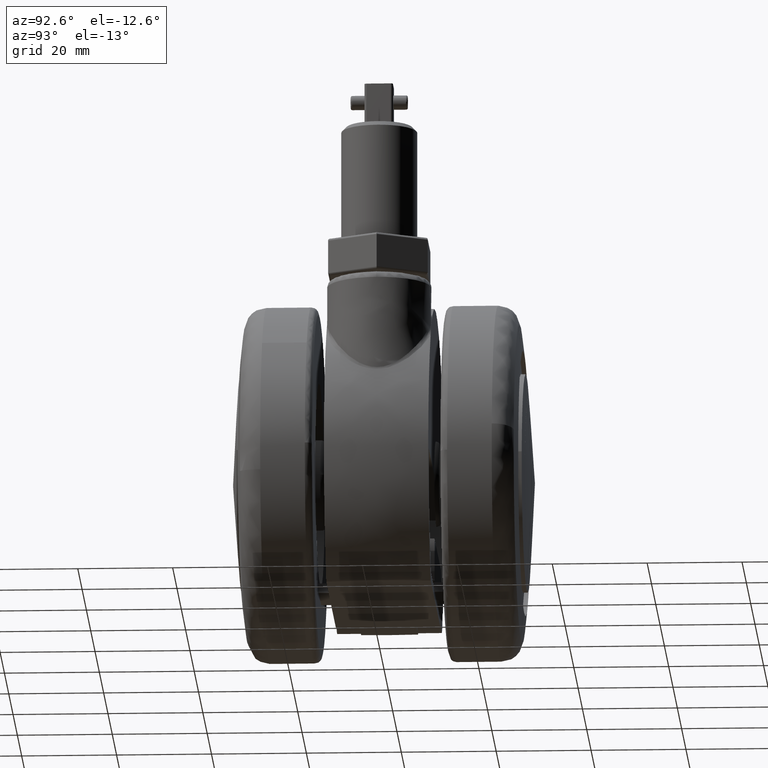
[diagram: clean part render]
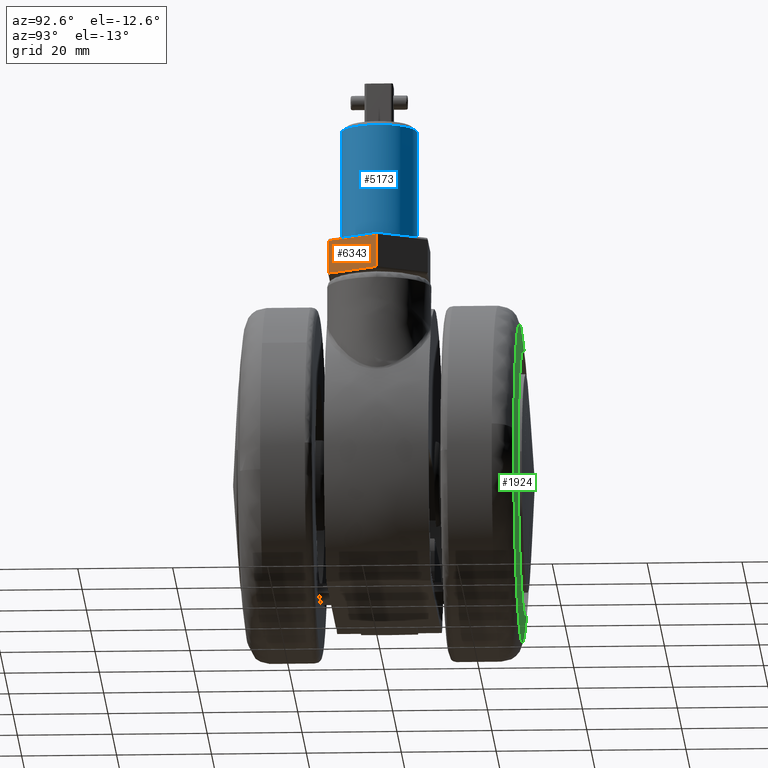
[diagram: same view with three faces highlighted in distinct colors, each labeled with its STEP entity id]
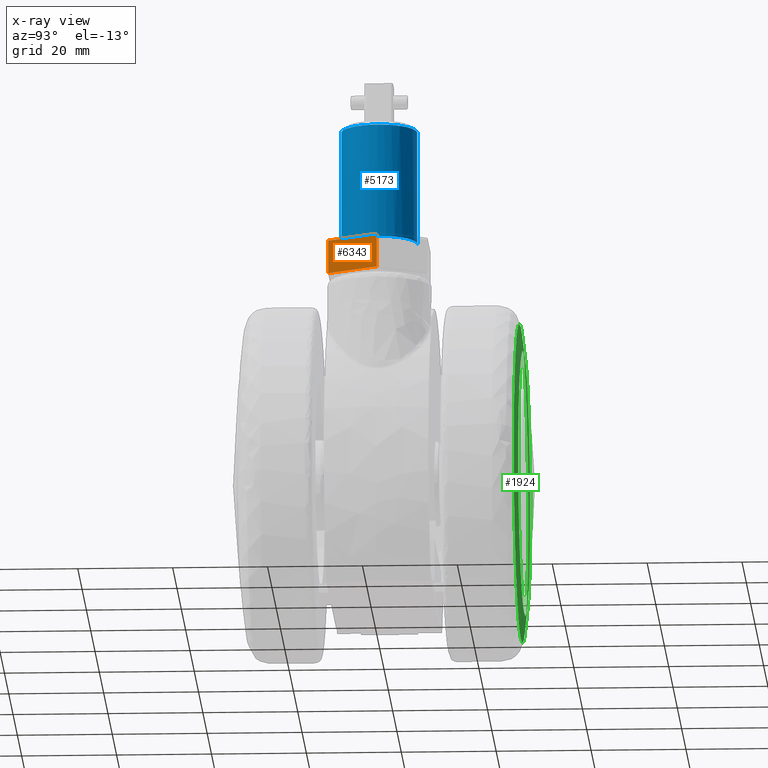
[diagram: x-ray of the same camera — body ghosted, the three highlighted faces saturated]
A machine part, auxiliary view with three faces highlighted in distinct colors.
The next image is the same camera in x-ray (body ghosted, the three faces saturated) — at least one of them is partly hidden behind the body in this view.
Their STEP definitions:

[orange] entity #6343 — the highlighted face is a freeform B-spline surface patch.
#5535=CARTESIAN_POINT('',(34.124355652982203,0.0,39.500000000000000));
#5536=VERTEX_POINT('',#5535);
#5582=CARTESIAN_POINT('',(28.062177826491101,-10.500000000000000,39.500000000000000));
#5583=VERTEX_POINT('',#5582);
#5626=CARTESIAN_POINT('',(28.062177826491101,-10.500000000000000,39.500000000000000));
#5627=CARTESIAN_POINT('',(34.124355652982203,0.0,39.500000000000000));
#5628=QUASI_UNIFORM_CURVE('',1,(#5626,#5627),.UNSPECIFIED.,.F.,.U.);
#5629=EDGE_CURVE('',#5583,#5536,#5628,.T.);
#5678=CARTESIAN_POINT('',(34.124355652982203,0.0,46.500000000000000));
#5679=VERTEX_POINT('',#5678);
#5717=CARTESIAN_POINT('',(28.062177826491101,-10.500000000000000,46.500000000000000));
#5718=VERTEX_POINT('',#5717);
#5732=CARTESIAN_POINT('',(34.124355652982203,0.0,46.500000000000000));
#5733=CARTESIAN_POINT('',(28.062177826491101,-10.500000000000000,46.500000000000000));
#5734=QUASI_UNIFORM_CURVE('',1,(#5732,#5733),.UNSPECIFIED.,.F.,.U.);
#5735=EDGE_CURVE('',#5679,#5718,#5734,.T.);
#6319=CARTESIAN_POINT('',(28.062177826491101,-10.500000000000000,46.500000000000000));
#6320=CARTESIAN_POINT('',(28.062177826491101,-10.500000000000000,39.500000000000000));
#6321=QUASI_UNIFORM_CURVE('',1,(#6319,#6320),.UNSPECIFIED.,.F.,.U.);
#6322=EDGE_CURVE('',#5718,#5583,#6321,.T.);
#6328=CARTESIAN_POINT('',(27.759372020558541,-11.024475040702090,39.150350013567348));
#6329=CARTESIAN_POINT('',(34.427161133714222,0.524474477438184,39.150350013567348));
#6330=CARTESIAN_POINT('',(27.759372020558541,-11.024475040702090,46.849650174187282));
#6331=CARTESIAN_POINT('',(34.427161133714222,0.524474477438184,46.849650174187282));
#6332=B_SPLINE_SURFACE_WITH_KNOTS('',1,1,((#6328,#6330),(#6329,#6331)),.UNSPECIFIED.,.F.,.F.,.U.,(2,2),(2,2),(0.0,13.335578226311370),(0.0,7.699300160619926),.UNSPECIFIED.);
#6333=ORIENTED_EDGE('',*,*,#6322,.T.);
#6334=ORIENTED_EDGE('',*,*,#5629,.T.);
#6335=CARTESIAN_POINT('',(34.124355652982203,0.0,46.500000000000000));
#6336=CARTESIAN_POINT('',(34.124355652982203,0.0,39.500000000000000));
#6337=QUASI_UNIFORM_CURVE('',1,(#6335,#6336),.UNSPECIFIED.,.F.,.U.);
#6338=EDGE_CURVE('',#5679,#5536,#6337,.T.);
#6339=ORIENTED_EDGE('',*,*,#6338,.F.);
#6340=ORIENTED_EDGE('',*,*,#5735,.T.);
#6341=EDGE_LOOP('',(#6333,#6334,#6339,#6340));
#6342=FACE_OUTER_BOUND('',#6341,.T.);
#6343=ADVANCED_FACE('',(#6342),#6332,.T.);

[blue] entity #5173 — the highlighted face is a freeform B-spline surface patch.
#4440=CARTESIAN_POINT('',(25.233723456026681,-7.317310476542374,70.999999999989114));
#4441=VERTEX_POINT('',#4440);
#4442=CARTESIAN_POINT('',(21.006975983200199,-7.938129710584148,71.0));
#4443=VERTEX_POINT('',#4442);
#4444=CARTESIAN_POINT('',(25.233723456026674,-7.317310476542374,70.999999999989114));
#4445=CARTESIAN_POINT('',(23.688924938151285,-8.000000000000002,71.0));
#4446=CARTESIAN_POINT('',(22.0,-8.0,71.0));
#4447=CARTESIAN_POINT('',(21.501560579568991,-8.000000000000002,71.0));
#4448=CARTESIAN_POINT('',(21.006975983200203,-7.938129710584148,71.0));
#4456=(BOUNDED_CURVE()B_SPLINE_CURVE(2,(#4444,#4445,#4446,#4447,#4448),.UNSPECIFIED.,.F.,.U.)B_SPLINE_CURVE_WITH_KNOTS((3,2,3),(0.181361578454842,0.250000000000000,0.271473928977549),.UNSPECIFIED.)CURVE()GEOMETRIC_REPRESENTATION_ITEM()RATIONAL_B_SPLINE_CURVE((0.883326595746506,0.919585087117457,1.0,0.974841727284777,0.954005430261430))REPRESENTATION_ITEM(''));
#4457=EDGE_CURVE('',#4441,#4443,#4456,.T.);
#4500=CARTESIAN_POINT('',(22.069812284123142,7.999695384512059,71.000000000000114));
#4501=VERTEX_POINT('',#4500);
#4558=CARTESIAN_POINT('',(30.0,0.0,71.0));
#4559=VERTEX_POINT('',#4558);
#4560=CARTESIAN_POINT('',(30.0,0.0,71.0));
#4561=CARTESIAN_POINT('',(29.999999999999996,-5.210960020547256,71.0));
#4562=CARTESIAN_POINT('',(25.233723456026681,-7.317310476542374,70.999999999989129));
#4570=(BOUNDED_CURVE()B_SPLINE_CURVE(2,(#4560,#4561,#4562),.UNSPECIFIED.,.F.,.U.)B_SPLINE_CURVE_WITH_KNOTS((3,3),(0.0,0.181361578454842),.UNSPECIFIED.)CURVE()GEOMETRIC_REPRESENTATION_ITEM()RATIONAL_B_SPLINE_CURVE((1.0,0.787521694069091,0.883326595746506))REPRESENTATION_ITEM(''));
#4571=EDGE_CURVE('',#4559,#4441,#4570,.T.);
#4573=CARTESIAN_POINT('',(22.069812284123135,7.999695384512059,71.000000000000114));
#4574=CARTESIAN_POINT('',(30.0,7.930489684219924,71.0));
#4575=CARTESIAN_POINT('',(30.0,0.0,71.0));
#4583=(BOUNDED_CURVE()B_SPLINE_CURVE(2,(#4573,#4574,#4575),.UNSPECIFIED.,.F.,.U.)B_SPLINE_CURVE_WITH_KNOTS((3,3),(0.751539894346978,1.0),.UNSPECIFIED.)CURVE()GEOMETRIC_REPRESENTATION_ITEM()RATIONAL_B_SPLINE_CURVE((0.996414028072655,0.708910879634224,1.0))REPRESENTATION_ITEM(''));
#4584=EDGE_CURVE('',#4501,#4559,#4583,.T.);
#5067=CARTESIAN_POINT('',(22.069812284233439,7.999695384511218,47.0));
#5068=VERTEX_POINT('',#5067);
#5069=CARTESIAN_POINT('',(22.069812284123142,7.999695384512059,71.000000000000114));
#5070=CARTESIAN_POINT('',(22.069812284233439,7.999695384511218,47.0));
#5071=QUASI_UNIFORM_CURVE('',1,(#5069,#5070),.UNSPECIFIED.,.F.,.U.);
#5072=EDGE_CURVE('',#4501,#5068,#5071,.T.);
#5091=CARTESIAN_POINT('',(21.006975983172079,-7.938129710580631,47.0));
#5092=VERTEX_POINT('',#5091);
#5106=CARTESIAN_POINT('',(21.006975983200199,-7.938129710584148,71.0));
#5107=CARTESIAN_POINT('',(21.006975983172079,-7.938129710580631,47.0));
#5108=QUASI_UNIFORM_CURVE('',1,(#5106,#5107),.UNSPECIFIED.,.F.,.U.);
#5109=EDGE_CURVE('',#4443,#5092,#5108,.T.);
#5114=CARTESIAN_POINT('',(22.069812283986991,7.999695384513368,71.599999999999994));
#5115=CARTESIAN_POINT('',(30.069507668500364,7.929883100526377,71.599999999999994));
#5116=CARTESIAN_POINT('',(29.999695384513370,-0.069812283986991,71.599999999999994));
#5117=CARTESIAN_POINT('',(29.929883100526371,-8.069507668500359,71.599999999999994));
#5118=CARTESIAN_POINT('',(21.930187716013009,-7.999695384513368,71.599999999999994));
#5119=CARTESIAN_POINT('',(21.466798728334602,-7.995651450082205,71.599999999999994));
#5120=CARTESIAN_POINT('',(21.006975983361357,-7.938129710604309,71.599999999999994));
#5121=CARTESIAN_POINT('',(22.069812283986991,7.999695384513368,46.384999999999991));
#5122=CARTESIAN_POINT('',(30.069507668500364,7.929883100526377,46.384999999999991));
#5123=CARTESIAN_POINT('',(29.999695384513370,-0.069812283986991,46.384999999999991));
#5124=CARTESIAN_POINT('',(29.929883100526371,-8.069507668500359,46.384999999999991));
#5125=CARTESIAN_POINT('',(21.930187716013009,-7.999695384513368,46.384999999999991));
#5126=CARTESIAN_POINT('',(21.466798728334602,-7.995651450082205,46.384999999999991));
#5127=CARTESIAN_POINT('',(21.006975983361357,-7.938129710604309,46.384999999999977));
#5135=(BOUNDED_SURFACE()B_SPLINE_SURFACE(2,1,((#5114,#5121),(#5115,#5122),(#5116,#5123),(#5117,#5124),(#5118,#5125),(#5119,#5126),(#5120,#5127)),.UNSPECIFIED.,.F.,.F.,.U.)B_SPLINE_SURFACE_WITH_KNOTS((3,2,2,3),(2,2),(0.0,13.254833995939050,26.509667991878089,27.570054711553212),(0.0,25.215000000000011),.UNSPECIFIED.)GEOMETRIC_REPRESENTATION_ITEM()RATIONAL_B_SPLINE_SURFACE(((1.0,1.0),(0.707106781186548,0.707106781186548),(1.0,1.0),(0.707106781186548,0.707106781186548),(1.0,1.0),(0.976568542494924,0.976568542494924),(0.956886118190660,0.956886118190660)))REPRESENTATION_ITEM('')SURFACE());
#5136=ORIENTED_EDGE('',*,*,#4571,.T.);
#5137=ORIENTED_EDGE('',*,*,#4457,.T.);
#5138=ORIENTED_EDGE('',*,*,#5109,.T.);
#5139=CARTESIAN_POINT('',(30.0,0.0,47.0));
#5140=VERTEX_POINT('',#5139);
#5141=CARTESIAN_POINT('',(21.006975983172079,-7.938129710580632,47.0));
#5142=CARTESIAN_POINT('',(21.501560579540545,-8.0,47.0));
#5143=CARTESIAN_POINT('',(22.0,-8.0,47.0));
#5144=CARTESIAN_POINT('',(30.000000000000004,-8.0,47.000000000000007));
#5145=CARTESIAN_POINT('',(30.0,0.0,47.0));
#5153=(BOUNDED_CURVE()B_SPLINE_CURVE(2,(#5141,#5142,#5143,#5144,#5145),.UNSPECIFIED.,.F.,.U.)B_SPLINE_CURVE_WITH_KNOTS((3,2,3),(0.728526071021256,0.750000000000000,1.0),.UNSPECIFIED.)CURVE()GEOMETRIC_REPRESENTATION_ITEM()RATIONAL_B_SPLINE_CURVE((0.954005430259111,0.974841727283377,1.0,0.707106781186548,1.0))REPRESENTATION_ITEM(''));
#5154=EDGE_CURVE('',#5092,#5140,#5153,.T.);
#5155=ORIENTED_EDGE('',*,*,#5154,.T.);
#5156=CARTESIAN_POINT('',(30.0,0.0,47.0));
#5157=CARTESIAN_POINT('',(30.0,7.930489684271167,47.000000000000007));
#5158=CARTESIAN_POINT('',(22.069812284233439,7.999695384511218,47.0));
#5166=(BOUNDED_CURVE()B_SPLINE_CURVE(2,(#5156,#5157,#5158),.UNSPECIFIED.,.F.,.U.)B_SPLINE_CURVE_WITH_KNOTS((3,3),(0.0,0.248460105654160),.UNSPECIFIED.)CURVE()GEOMETRIC_REPRESENTATION_ITEM()RATIONAL_B_SPLINE_CURVE((1.0,0.708910879632891,0.996414028075289))REPRESENTATION_ITEM(''));
#5167=EDGE_CURVE('',#5140,#5068,#5166,.T.);
#5168=ORIENTED_EDGE('',*,*,#5167,.T.);
#5169=ORIENTED_EDGE('',*,*,#5072,.F.);
#5170=ORIENTED_EDGE('',*,*,#4584,.T.);
#5171=EDGE_LOOP('',(#5136,#5137,#5138,#5155,#5168,#5169,#5170));
#5172=FACE_OUTER_BOUND('',#5171,.T.);
#5173=ADVANCED_FACE('',(#5172),#5135,.T.);

[green] entity #1924 — the highlighted face is a freeform B-spline surface patch.
#244=CARTESIAN_POINT('',(0.0,29.554419667084051,28.000000000000011));
#245=VERTEX_POINT('',#244);
#246=CARTESIAN_POINT('',(27.913686462384501,29.554419667082389,2.196840476568322));
#247=VERTEX_POINT('',#246);
#248=CARTESIAN_POINT('',(0.0,29.554419667084051,28.000000000000011));
#249=CARTESIAN_POINT('',(25.882946977626393,29.554419667084062,28.000000000000014));
#250=CARTESIAN_POINT('',(27.913686462384497,29.554419667082389,2.196840476568322));
#258=(BOUNDED_CURVE()B_SPLINE_CURVE(2,(#248,#249,#250),.UNSPECIFIED.,.F.,.U.)B_SPLINE_CURVE_WITH_KNOTS((3,3),(0.0,0.236331387861709),.UNSPECIFIED.)CURVE()GEOMETRIC_REPRESENTATION_ITEM()RATIONAL_B_SPLINE_CURVE((1.0,0.723120556410134,0.969723538212035))REPRESENTATION_ITEM(''));
#259=EDGE_CURVE('',#245,#247,#258,.T.);
#300=CARTESIAN_POINT('',(-27.913686462384501,29.554419667082389,-2.196840476568318));
#301=VERTEX_POINT('',#300);
#307=CARTESIAN_POINT('',(-27.913686462384504,29.554419667082385,-2.196840476568318));
#308=CARTESIAN_POINT('',(-28.0,29.554419667084048,-1.100115861351730));
#309=CARTESIAN_POINT('',(-28.0,29.554419667084051,1.085776E-014));
#310=CARTESIAN_POINT('',(-28.000000000000004,29.554419667084055,28.000000000000018));
#311=CARTESIAN_POINT('',(0.0,29.554419667084051,28.000000000000011));
#319=(BOUNDED_CURVE()B_SPLINE_CURVE(2,(#307,#308,#309,#310,#311),.UNSPECIFIED.,.F.,.U.)B_SPLINE_CURVE_WITH_KNOTS((3,2,3),(0.736331387861709,0.750000000000000,1.0),.UNSPECIFIED.)CURVE()GEOMETRIC_REPRESENTATION_ITEM()RATIONAL_B_SPLINE_CURVE((0.969723538212035,0.983986224776414,1.0,0.707106781186547,1.0))REPRESENTATION_ITEM(''));
#320=EDGE_CURVE('',#301,#245,#319,.T.);
#343=CARTESIAN_POINT('',(0.0,29.554419667084051,-27.999999999999989));
#344=VERTEX_POINT('',#343);
#345=CARTESIAN_POINT('',(27.913686462384497,29.554419667082389,2.196840476568322));
#346=CARTESIAN_POINT('',(27.999999999999996,29.554419667084055,1.100115861351743));
#347=CARTESIAN_POINT('',(28.0,29.554419667084051,1.085776E-014));
#348=CARTESIAN_POINT('',(28.000000000000004,29.554419667084055,-27.999999999999986));
#349=CARTESIAN_POINT('',(0.0,29.554419667084051,-27.999999999999989));
#357=(BOUNDED_CURVE()B_SPLINE_CURVE(2,(#345,#346,#347,#348,#349),.UNSPECIFIED.,.F.,.U.)B_SPLINE_CURVE_WITH_KNOTS((3,2,3),(0.236331387861709,0.250000000000000,0.500000000000000),.UNSPECIFIED.)CURVE()GEOMETRIC_REPRESENTATION_ITEM()RATIONAL_B_SPLINE_CURVE((0.969723538212035,0.983986224776414,1.0,0.707106781186547,1.0))REPRESENTATION_ITEM(''));
#358=EDGE_CURVE('',#247,#344,#357,.T.);
#360=CARTESIAN_POINT('',(0.0,29.554419667084051,-27.999999999999989));
#361=CARTESIAN_POINT('',(-25.882946977626375,29.554419667084058,-27.999999999999986));
#362=CARTESIAN_POINT('',(-27.913686462384504,29.554419667082385,-2.196840476568318));
#370=(BOUNDED_CURVE()B_SPLINE_CURVE(2,(#360,#361,#362),.UNSPECIFIED.,.F.,.U.)B_SPLINE_CURVE_WITH_KNOTS((3,3),(0.500000000000000,0.736331387861709),.UNSPECIFIED.)CURVE()GEOMETRIC_REPRESENTATION_ITEM()RATIONAL_B_SPLINE_CURVE((1.0,0.723120556410134,0.969723538212035))REPRESENTATION_ITEM(''));
#371=EDGE_CURVE('',#344,#301,#370,.T.);
#1743=CARTESIAN_POINT('',(0.0,28.858495288716600,33.604889112474872));
#1744=VERTEX_POINT('',#1743);
#1745=CARTESIAN_POINT('',(33.339904526298447,28.858495214521771,4.211809416963416));
#1746=VERTEX_POINT('',#1745);
#1747=CARTESIAN_POINT('',(0.0,28.858495288716600,33.604889112474872));
#1748=CARTESIAN_POINT('',(29.626695034620617,28.858495288716604,33.604889112474865));
#1749=CARTESIAN_POINT('',(33.339904526298454,28.858495214521763,4.211809416963416));
#1757=(BOUNDED_CURVE()B_SPLINE_CURVE(2,(#1747,#1748,#1749),.UNSPECIFIED.,.F.,.U.)B_SPLINE_CURVE_WITH_KNOTS((3,3),(0.0,0.228321256474543),.UNSPECIFIED.)CURVE()GEOMETRIC_REPRESENTATION_ITEM()RATIONAL_B_SPLINE_CURVE((1.0,0.732505009070557,0.953608357578369))REPRESENTATION_ITEM(''));
#1758=EDGE_CURVE('',#1744,#1746,#1757,.T.);
#1760=CARTESIAN_POINT('',(-33.339904526298447,28.858495214521771,-4.211809416963391));
#1761=VERTEX_POINT('',#1760);
#1762=CARTESIAN_POINT('',(-33.339904526298461,28.858495214521778,-4.211809416963392));
#1763=CARTESIAN_POINT('',(-33.604889112474851,28.858495288716600,-2.114240417307883));
#1764=CARTESIAN_POINT('',(-33.604889112474851,28.858495288716600,1.060209E-014));
#1765=CARTESIAN_POINT('',(-33.604889112474844,28.858495288716600,33.604889112474872));
#1766=CARTESIAN_POINT('',(0.0,28.858495288716600,33.604889112474872));
#1774=(BOUNDED_CURVE()B_SPLINE_CURVE(2,(#1762,#1763,#1764,#1765,#1766),.UNSPECIFIED.,.F.,.U.)B_SPLINE_CURVE_WITH_KNOTS((3,2,3),(0.728321256474543,0.750000000000000,1.0),.UNSPECIFIED.)CURVE()GEOMETRIC_REPRESENTATION_ITEM()RATIONAL_B_SPLINE_CURVE((0.953608357578370,0.974601772115991,1.0,0.707106781186547,1.0))REPRESENTATION_ITEM(''));
#1775=EDGE_CURVE('',#1761,#1744,#1774,.T.);
#1832=CARTESIAN_POINT('',(0.0,28.858495288716600,-33.604889112474837));
#1833=VERTEX_POINT('',#1832);
#1834=CARTESIAN_POINT('',(33.339904526298454,28.858495214521767,4.211809416963416));
#1835=CARTESIAN_POINT('',(33.604889112474851,28.858495288716604,2.114240417307910));
#1836=CARTESIAN_POINT('',(33.604889112474851,28.858495288716600,1.060209E-014));
#1837=CARTESIAN_POINT('',(33.604889112474844,28.858495288716600,-33.604889112474844));
#1838=CARTESIAN_POINT('',(0.0,28.858495288716600,-33.604889112474837));
#1846=(BOUNDED_CURVE()B_SPLINE_CURVE(2,(#1834,#1835,#1836,#1837,#1838),.UNSPECIFIED.,.F.,.U.)B_SPLINE_CURVE_WITH_KNOTS((3,2,3),(0.228321256474543,0.250000000000000,0.500000000000000),.UNSPECIFIED.)CURVE()GEOMETRIC_REPRESENTATION_ITEM()RATIONAL_B_SPLINE_CURVE((0.953608357578370,0.974601772115991,1.0,0.707106781186547,1.0))REPRESENTATION_ITEM(''));
#1847=EDGE_CURVE('',#1746,#1833,#1846,.T.);
#1854=CARTESIAN_POINT('',(0.0,28.858495288716600,-33.604889112474837));
#1855=CARTESIAN_POINT('',(-29.626695034620788,28.858495288716593,-33.604889112474837));
#1856=CARTESIAN_POINT('',(-33.339904526298454,28.858495214521778,-4.211809416963391));
#1864=(BOUNDED_CURVE()B_SPLINE_CURVE(2,(#1854,#1855,#1856),.UNSPECIFIED.,.F.,.U.)B_SPLINE_CURVE_WITH_KNOTS((3,3),(0.500000000000000,0.728321256474544),.UNSPECIFIED.)CURVE()GEOMETRIC_REPRESENTATION_ITEM()RATIONAL_B_SPLINE_CURVE((1.0,0.732505009070556,0.953608357578371))REPRESENTATION_ITEM(''));
#1865=EDGE_CURVE('',#1833,#1761,#1864,.T.);
#1888=CARTESIAN_POINT('',(-36.722584561521693,25.673255749170767,36.725475736765915));
#1889=CARTESIAN_POINT('',(-18.461978054120458,28.385141950232381,36.926863137500867));
#1890=CARTESIAN_POINT('',(18.461977197860588,28.385141950232381,36.926863137500867));
#1891=CARTESIAN_POINT('',(36.722582876918601,25.673255999351522,36.725475755344597));
#1892=CARTESIAN_POINT('',(-36.923987991428667,28.385571323587964,18.463447511599369));
#1893=CARTESIAN_POINT('',(-18.563790272656661,31.127367999999880,18.565251802979699));
#1894=CARTESIAN_POINT('',(18.563789411674779,31.127367999999880,18.565251802979699));
#1895=CARTESIAN_POINT('',(36.923986297688892,28.385571576520437,18.463447520990890));
#1896=CARTESIAN_POINT('',(-36.923987991428667,28.385571323587964,-18.463450553041309));
#1897=CARTESIAN_POINT('',(-18.563790272656661,31.127367999999880,-18.565254861191612));
#1898=CARTESIAN_POINT('',(18.563789411674779,31.127367999999880,-18.565254861191612));
#1899=CARTESIAN_POINT('',(36.923986297688892,28.385571576520437,-18.463450562432811));
#1900=CARTESIAN_POINT('',(-36.722584495530157,25.673254860457604,-36.725481720473745));
#1901=CARTESIAN_POINT('',(-18.461978020761826,28.385141051745801,-36.926869153656995));
#1902=CARTESIAN_POINT('',(18.461977164501963,28.385141051745801,-36.926869153656995));
#1903=CARTESIAN_POINT('',(36.722582810927079,25.673255110638351,-36.725481739052427));
#1911=(BOUNDED_SURFACE()B_SPLINE_SURFACE(2,2,((#1888,#1892,#1896,#1900),(#1889,#1893,#1897,#1901),(#1890,#1894,#1898,#1902),(#1891,#1895,#1899,#1903)),.UNSPECIFIED.,.F.,.F.,.U.)B_SPLINE_SURFACE_WITH_KNOTS((3,1,3),(3,1,3),(77.774355638885496,113.912011030896910,150.049664746856710),(77.771510515213009,113.912011030896910,150.052517499923710),.UNSPECIFIED.)GEOMETRIC_REPRESENTATION_ITEM()RATIONAL_B_SPLINE_SURFACE(((1.011028526140724,1.005513828948595,1.005513828948595,1.011028527957571),(1.005514697192129,1.0,1.0,1.005514699008976),(1.005514697192129,1.0,1.0,1.005514699008976),(1.011028525629265,1.005513828437136,1.005513828437136,1.011028527446112)))REPRESENTATION_ITEM('')SURFACE());
#1912=ORIENTED_EDGE('',*,*,#1758,.T.);
#1913=ORIENTED_EDGE('',*,*,#1847,.T.);
#1914=ORIENTED_EDGE('',*,*,#1865,.T.);
#1915=ORIENTED_EDGE('',*,*,#1775,.T.);
#1916=EDGE_LOOP('',(#1912,#1913,#1914,#1915));
#1917=FACE_OUTER_BOUND('',#1916,.T.);
#1918=ORIENTED_EDGE('',*,*,#371,.F.);
#1919=ORIENTED_EDGE('',*,*,#358,.F.);
#1920=ORIENTED_EDGE('',*,*,#259,.F.);
#1921=ORIENTED_EDGE('',*,*,#320,.F.);
#1922=EDGE_LOOP('',(#1918,#1919,#1920,#1921));
#1923=FACE_BOUND('',#1922,.T.);
#1924=ADVANCED_FACE('',(#1917,#1923),#1911,.T.);